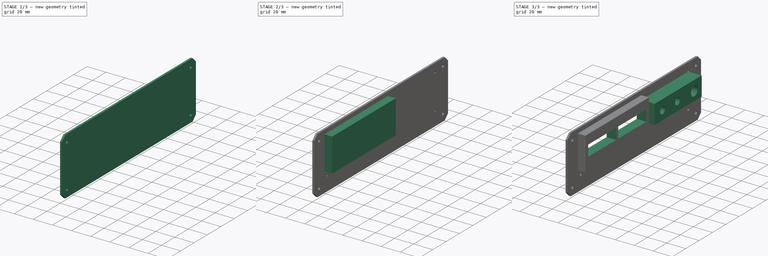
[diagram: build sequence overview — one tinted view per stage of 3, left to right]
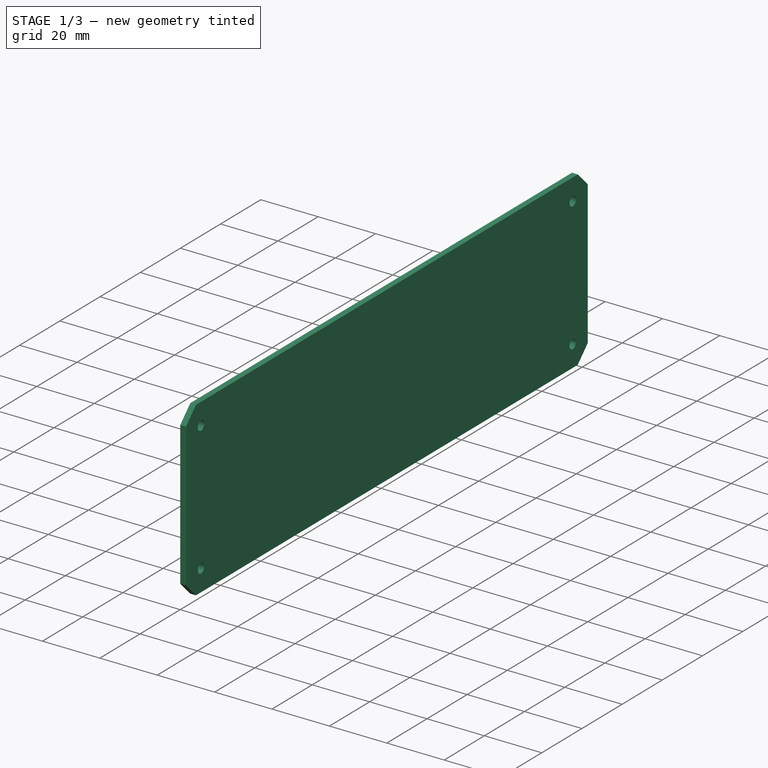
[diagram: stage 1 of 3 — iso view after this stage's code; geometry added in this stage tinted green]
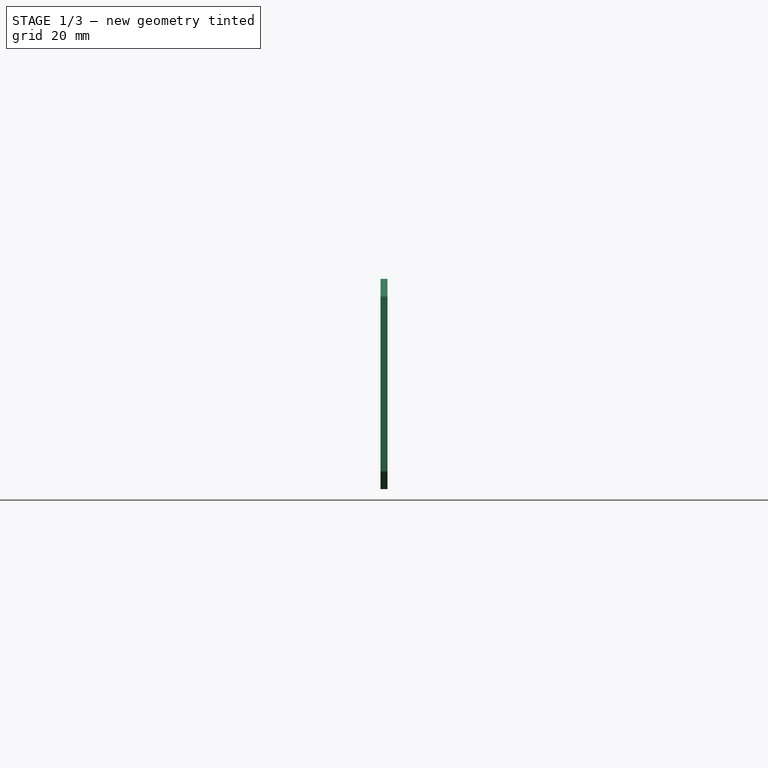
[diagram: stage 1 of 3 — front view after this stage's code; geometry added in this stage tinted green]
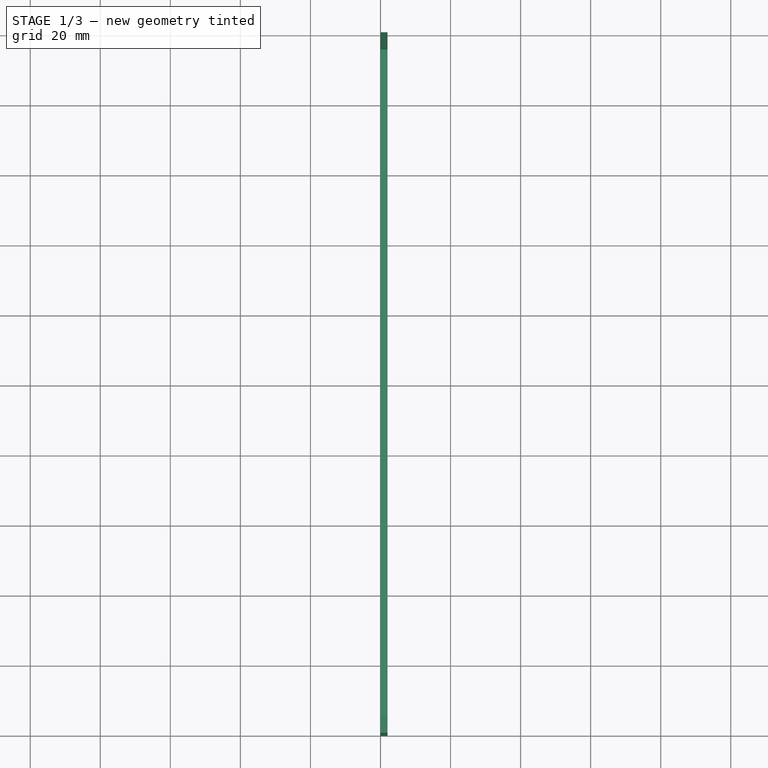
[diagram: stage 1 of 3 — top view after this stage's code; geometry added in this stage tinted green]
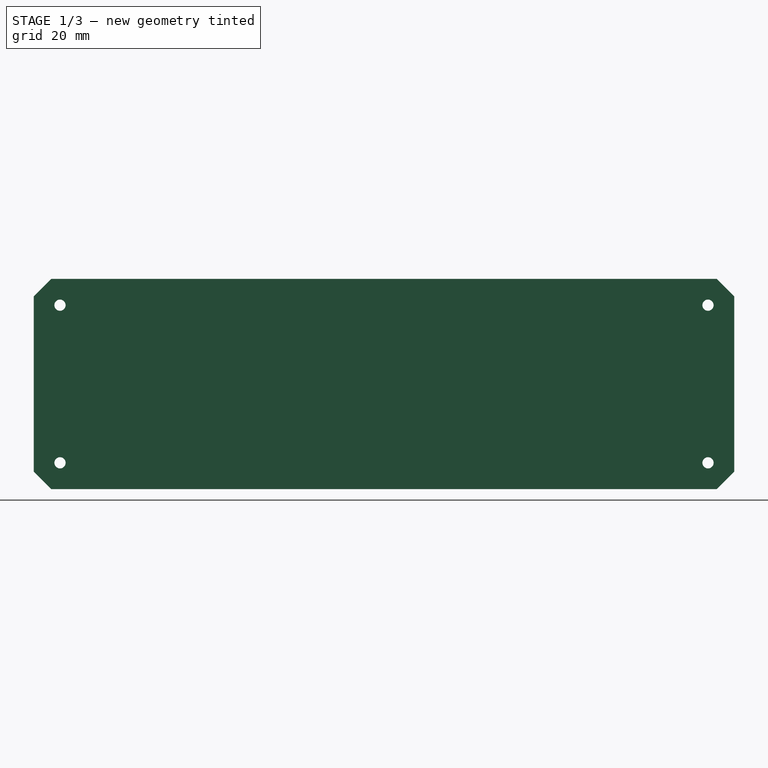
[diagram: stage 1 of 3 — right view after this stage's code; geometry added in this stage tinted green]
FCSTD DOCUMENT  (FreeCAD 1.0R39109 (Git))
Label: case_front_v2
License: All rights reserved
LicenseURL: https://en.wikipedia.org/wiki/All_rights_reserved
objects: Sketcher::SketchObject×8, PartDesign::Pocket×4, PartDesign::Pad×3, PartDesign::Chamfer×1, PartDesign::Body×1
note: 41 computed .brp shape members not serialized (recipe doc carries the construction recipe); baked Part::Feature solids carry a one-line shape summary decoded from their .brp

FEATURE [Sketcher::SketchObject] Sketch
  ArcFitTolerance = 1e-06
  AttachmentSupport = -> [YZ_Plane]
  FullyConstrained = true
  MakeInternals = false
  MapMode = 5
  Placement = pos=(0,0,0) rot=(0.57735,0.57735,0.57735;2.0944rad)
  sketch-geometry (4):
    g0: LineSegment StartX=0 StartY=0 StartZ=0 EndX=200 EndY=0 EndZ=0
    g1: LineSegment StartX=200 StartY=0 StartZ=0 EndX=200 EndY=60 EndZ=0
    g2: LineSegment StartX=200 StartY=60 StartZ=0 EndX=0 EndY=60 EndZ=0
    g3: LineSegment StartX=0 StartY=60 StartZ=0 EndX=0 EndY=0 EndZ=0
  constraints (11):
    c: Coincident(g0,g1)
    c: Coincident(g1,g2)
    c: Coincident(g2,g3)
    c: Coincident(g3,g0)
    c: Horizontal(g0)
    c: Horizontal(g2)
    c: Vertical(g1)
    c: Vertical(g3)
    c: Coincident(g0,g-1)
    c: Distance(g2,g2) = 200
    c: DistanceY(g1,g1) = 60
FEATURE [PartDesign::Pad] Pad
  Direction = (1,0,0)
  Length = 2
  Length2 = 10
  Placement = pos=(0,0,0) rot=(1,1,1;2.0944rad)
  Profile = -> Sketch
  ReferenceAxis = -> Sketch [N_Axis]
  Refine = true
  Suppressed = false
  Type = 0
FEATURE [Sketcher::SketchObject] Sketch002
  ArcFitTolerance = 1e-06
  FullyConstrained = true
  MakeInternals = false
  MapMode = 5
  Placement = pos=(2,0,2e-16) rot=(0.57735,0.57735,0.57735;2.0944rad)
  sketch-geometry (8):
    g0: LineSegment [constr] StartX=7.5 StartY=52.5 StartZ=0 EndX=7.5 EndY=7.5 EndZ=0
    g1: LineSegment [constr] StartX=7.5 StartY=7.5 StartZ=0 EndX=192.5 EndY=7.5 EndZ=0
    g2: LineSegment [constr] StartX=192.5 StartY=7.5 StartZ=0 EndX=192.5 EndY=52.5 EndZ=0
    g3: LineSegment [constr] StartX=192.5 StartY=52.5 StartZ=0 EndX=7.5 EndY=52.5 EndZ=0
    g4: Circle CenterX=7.5 CenterY=52.5 CenterZ=0 NormalX=0 NormalY=0 NormalZ=1 AngleXU=0 Radius=1.6
    g5: Circle CenterX=7.5 CenterY=7.5 CenterZ=0 NormalX=0 NormalY=0 NormalZ=1 AngleXU=0 Radius=1.6
    g6: Circle CenterX=192.5 CenterY=7.5 CenterZ=0 NormalX=0 NormalY=0 NormalZ=1 AngleXU=0 Radius=1.6
    g7: Circle CenterX=192.5 CenterY=52.5 CenterZ=0 NormalX=0 NormalY=0 NormalZ=1 AngleXU=0 Radius=1.6
  constraints (20):
    c: Coincident(g0,g1)
    c: Coincident(g1,g2)
    c: Coincident(g2,g3)
    c: Coincident(g3,g0)
    c: Vertical(g0)
    c: Vertical(g2)
    c: Horizontal(g1)
    c: Horizontal(g3)
    c: Distance(g-2,g0) = 7.5
    c: Distance(g-1,g1) = 7.5
    c: Coincident(g4,g0)
    c: Coincident(g5,g0)
    c: Coincident(g6,g1)
    c: Coincident(g7,g2)
    c: Equal(g7,g4)
    c: Equal(g4,g5)
    c: Equal(g5,g6)
    c: Diameter(g4) = 3.2
    c: DistanceY(g0,g0) = 45
    c: DistanceX(g3,g3) = 185
FEATURE [PartDesign::Pocket] Pocket001
  BaseFeature = -> Pad
  Direction = (-1,-1e-16,1e-16)
  Length = 5
  Length2 = 5
  Placement = pos=(0,0,0) rot=(1,1,1;2.0944rad)
  Profile = -> Sketch002
  ReferenceAxis = -> Sketch002 [N_Axis]
  Refine = true
  Suppressed = false
  Type = 0
FEATURE [Sketcher::SketchObject] Sketch001
  ArcFitTolerance = 1e-06
  AttachmentSupport = -> [Pad]
  ExternalGeometry = -> [Pad,Pocket001]
  FullyConstrained = true
  MakeInternals = false
  MapMode = 5
  Placement = pos=(2,0,0) rot=(0.57735,0.57735,0.57735;2.0944rad)
  sketch-geometry (19):
    g0: Circle CenterX=173.9 CenterY=37.38 CenterZ=0 NormalX=0 NormalY=0 NormalZ=1 AngleXU=0 Radius=3
    g1: Circle CenterX=148.9 CenterY=37.38 CenterZ=0 NormalX=0 NormalY=0 NormalZ=1 AngleXU=0 Radius=5
    g2: Circle CenterX=126.4 CenterY=37.38 CenterZ=0 NormalX=0 NormalY=0 NormalZ=1 AngleXU=0 Radius=5
    g3: LineSegment [constr] StartX=24 StartY=48 StartZ=0 EndX=24 EndY=12 EndZ=0
    g4: LineSegment [constr] StartX=24 StartY=12 StartZ=0 EndX=185 EndY=12 EndZ=0
    g5: LineSegment [constr] StartX=185 StartY=48 StartZ=0 EndX=24 EndY=48 EndZ=0
    g6: LineSegment [constr] StartX=185 StartY=12 StartZ=0 EndX=185 EndY=30 EndZ=0
    g7: LineSegment [constr] StartX=185 StartY=30 StartZ=0 EndX=185 EndY=48 EndZ=0
    g8: LineSegment [constr] StartX=24 StartY=48 StartZ=0 EndX=0 EndY=48 EndZ=0
    g9: LineSegment StartX=22.4 StartY=44.13 StartZ=0 EndX=22.4 EndY=30.63 EndZ=0
    g10: LineSegment StartX=22.4 StartY=30.63 StartZ=0 EndX=112.4 EndY=30.63 EndZ=0
    g11: LineSegment StartX=112.4 StartY=44.13 StartZ=0 EndX=22.4 EndY=44.13 EndZ=0
    g12: LineSegment StartX=112.4 StartY=44.13 StartZ=0 EndX=112.4 EndY=37.38 EndZ=0
    g13: LineSegment StartX=112.4 StartY=37.38 StartZ=0 EndX=112.4 EndY=30.63 EndZ=0
    g14: Circle CenterX=24 CenterY=48 CenterZ=0 NormalX=0 NormalY=0 NormalZ=1 AngleXU=0 Radius=1.5
    g15: Circle CenterX=24 CenterY=12 CenterZ=0 NormalX=0 NormalY=0 NormalZ=1 AngleXU=0 Radius=1.5
    g16: Circle CenterX=185 CenterY=12 CenterZ=0 NormalX=0 NormalY=0 NormalZ=1 AngleXU=0 Radius=1.5
    g17: Circle CenterX=185 CenterY=48 CenterZ=0 NormalX=0 NormalY=0 NormalZ=1 AngleXU=0 Radius=1.5
    g18: LineSegment [constr] StartX=24 StartY=37.38 StartZ=0 EndX=185 EndY=37.38 EndZ=0
  constraints (54):
    c: DistanceX(g1,g0) = 25
    c: DistanceX(g2,g1) = 22.5
    c: Equal(g2,g1)
    c: Diameter(g2) = 10
    c: Diameter(g0) = 6
    c: Coincident(g3,g4)
    c: Coincident(g5,g3)
    c: Vertical(g3)
    c: Horizontal(g4)
    c: Horizontal(g5)
    c: Coincident(g6,g4)
    c: Vertical(g6)
    c: Coincident(g7,g6)
    c: Coincident(g7,g5)
    c: Vertical(g7)
    c: Equal(g7,g6)
    c: DistanceY(g3,g3) = 36
    c: Coincident(g8,g3)
    c: PointOnObject(g8,g-4)
    c: Horizontal(g8)
    c: Distance(g0,g7) = 11.1
    c: Coincident(g9,g10)
    c: Coincident(g11,g9)
    c: Vertical(g9)
    c: Horizontal(g10)
    c: Horizontal(g11)
    c: Coincident(g12,g11)
    c: Vertical(g12)
    c: Coincident(g13,g12)
    c: Coincident(g13,g10)
    c: Vertical(g13)
    c: Equal(g12,g13)
    c: DistanceX(g11,g11) = 90
    c: Distance(g2,g12) = 14
    c: DistanceX(g4,g4) = 161
    c: Distance(g9,g9) = 13.5
    c: Coincident(g14,g3)
    c: Coincident(g15,g3)
    c: Coincident(g16,g4)
    c: Coincident(g17,g5)
    c: Equal(g17,g16)
    c: Equal(g16,g15)
    c: Equal(g15,g14)
    c: Diameter(g14) = 3
    c: PointOnObject(g18,g3)
    c: PointOnObject(g18,g7)
    c: Horizontal(g18)
    c: PointOnObject(g12,g18)
    c: PointOnObject(g2,g18)
    c: PointOnObject(g1,g18)
    c: PointOnObject(g0,g18)
    c: Distance(g18,g5) = 10.62
    c: DistanceX(g5,g-6) = 7.5
    c: Distance(g-6,g5) = 4.5
FEATURE [PartDesign::Chamfer] Chamfer
  Angle = 45
  Base = -> Pocket001 [Edge1,Edge5,Edge8,Edge2]
  BaseFeature = -> Pocket001
  ChamferType = 0
  FlipDirection = false
  Placement = pos=(0,0,0) rot=(1,1,1;2.0944rad)
  Refine = true
  Size = 5
  Size2 = 1
  SupportTransform = false
  Suppressed = false
  UseAllEdges = false
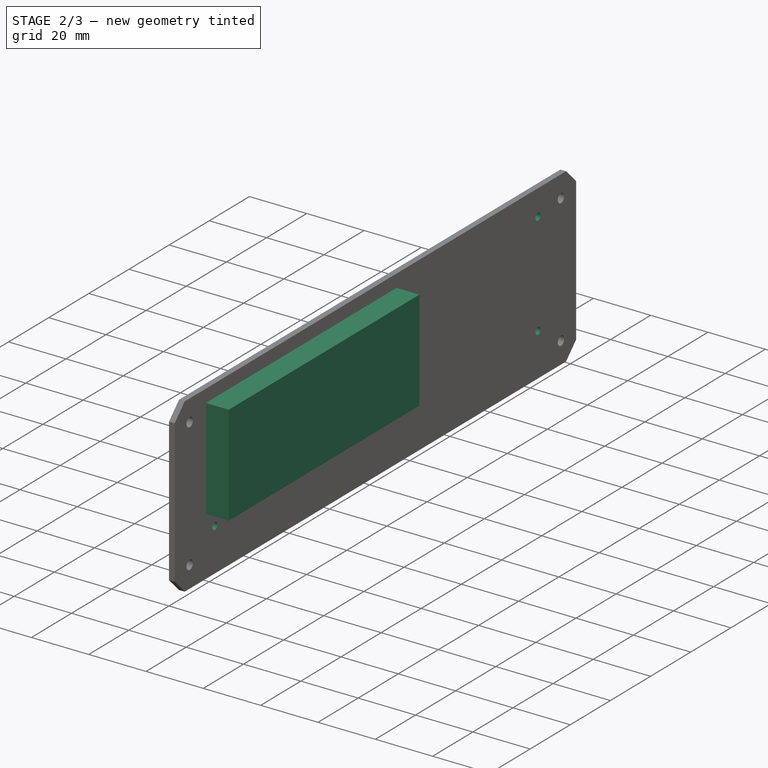
[diagram: stage 2 of 3 — iso view after this stage's code; geometry added in this stage tinted green]
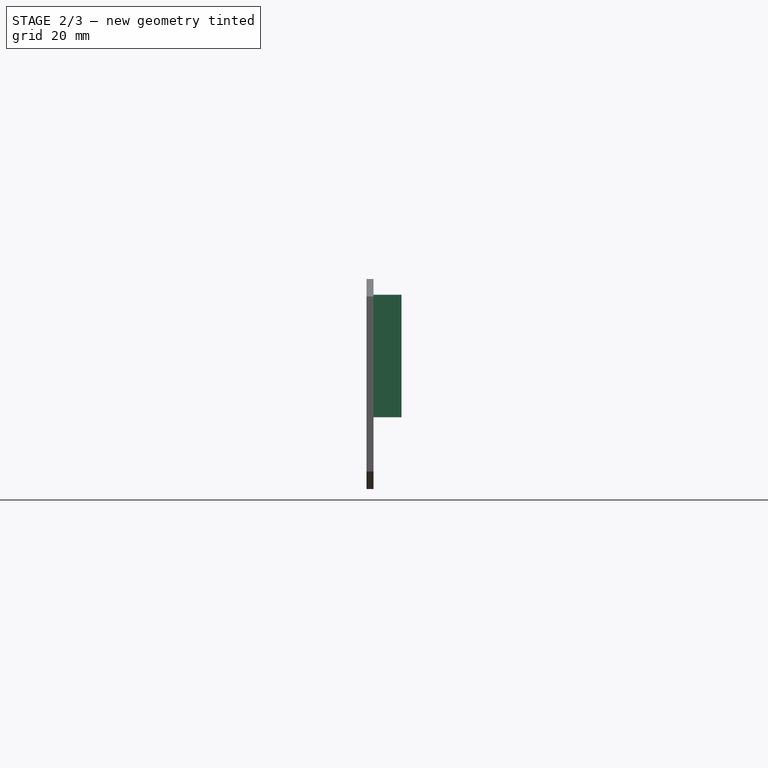
[diagram: stage 2 of 3 — front view after this stage's code; geometry added in this stage tinted green]
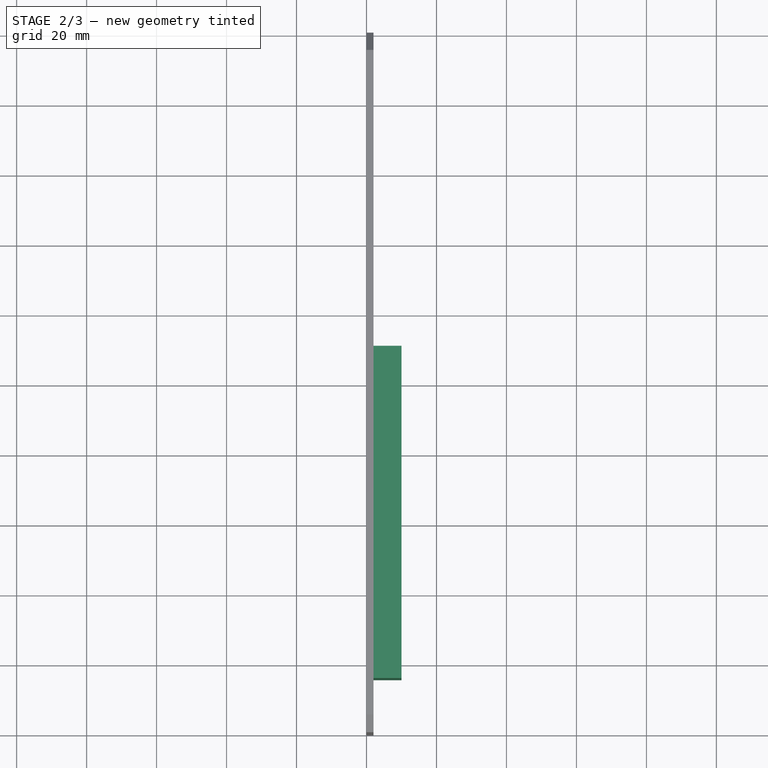
[diagram: stage 2 of 3 — top view after this stage's code; geometry added in this stage tinted green]
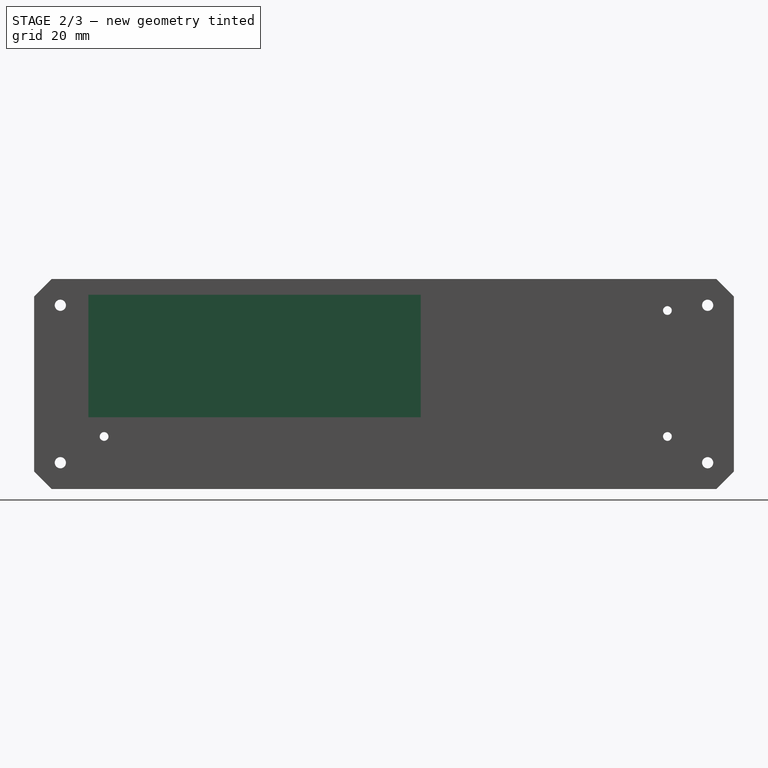
[diagram: stage 2 of 3 — right view after this stage's code; geometry added in this stage tinted green]
FEATURE [Sketcher::SketchObject] Sketch004
  ArcFitTolerance = 1e-06
  AttachmentSupport = -> [Chamfer]
  FullyConstrained = true
  MakeInternals = false
  MapMode = 5
  Placement = pos=(2,0,0) rot=(0.57735,0.57735,0.57735;2.0944rad)
  sketch-geometry (8):
    g0: LineSegment [constr] StartX=20 StartY=51 StartZ=0 EndX=20 EndY=15 EndZ=0
    g1: LineSegment [constr] StartX=20 StartY=15 StartZ=0 EndX=181 EndY=15 EndZ=0
    g2: LineSegment [constr] StartX=181 StartY=15 StartZ=0 EndX=181 EndY=51 EndZ=0
    g3: LineSegment [constr] StartX=181 StartY=51 StartZ=0 EndX=20 EndY=51 EndZ=0
    g4: Circle CenterX=20 CenterY=51 CenterZ=0 NormalX=0 NormalY=0 NormalZ=1 AngleXU=0 Radius=1.25
    g5: Circle CenterX=20 CenterY=15 CenterZ=0 NormalX=0 NormalY=0 NormalZ=1 AngleXU=0 Radius=1.25
    g6: Circle CenterX=181 CenterY=15 CenterZ=0 NormalX=0 NormalY=0 NormalZ=1 AngleXU=0 Radius=1.25
    g7: Circle CenterX=181 CenterY=51 CenterZ=0 NormalX=0 NormalY=0 NormalZ=1 AngleXU=0 Radius=1.25
  constraints (20):
    c: Coincident(g0,g1)
    c: Coincident(g1,g2)
    c: Coincident(g2,g3)
    c: Coincident(g3,g0)
    c: Vertical(g0)
    c: Vertical(g2)
    c: Horizontal(g1)
    c: Horizontal(g3)
    c: Coincident(g4,g0)
    c: Coincident(g5,g0)
    c: Coincident(g6,g1)
    c: Coincident(g7,g2)
    c: Equal(g4,g7)
    c: Equal(g7,g6)
    c: Equal(g6,g5)
    c: Diameter(g4) = 2.5
    c: DistanceY(g0,g0) = 36
    c: DistanceX(g3,g3) = 161
    c: Distance(g-2,g0) = 20
    c: Distance(g-1,g1) = 15
FEATURE [PartDesign::Pocket] Pocket
  BaseFeature = -> Chamfer
  Direction = (-1,0,0)
  Length = 5
  Length2 = 5
  Placement = pos=(0,0,0) rot=(1,1,1;2.0944rad)
  Profile = -> Sketch004
  ReferenceAxis = -> Sketch004 [N_Axis]
  Refine = true
  Suppressed = false
  Type = 1
FEATURE [Sketcher::SketchObject] Sketch003
  ArcFitTolerance = 1e-06
  ExternalGeometry = -> [Pocket]
  FullyConstrained = true
  MakeInternals = false
  MapMode = 5
  Placement = pos=(2,-4e-16,4e-16) rot=(0.57735,0.57735,0.57735;2.0944rad)
  sketch-geometry (4):
    g0: LineSegment StartX=15.5 StartY=55.5 StartZ=0 EndX=15.5 EndY=20.5 EndZ=0
    g1: LineSegment StartX=15.5 StartY=20.5 StartZ=0 EndX=110.5 EndY=20.5 EndZ=0
    g2: LineSegment StartX=110.5 StartY=55.5 StartZ=0 EndX=15.5 EndY=55.5 EndZ=0
    g3: LineSegment StartX=110.5 StartY=55.5 StartZ=0 EndX=110.5 EndY=20.5 EndZ=0
  constraints (12):
    c: Coincident(g0,g1)
    c: Coincident(g2,g0)
    c: Vertical(g0)
    c: Horizontal(g1)
    c: Horizontal(g2)
    c: DistanceX(g1,g1) = 95
    c: Coincident(g3,g2)
    c: Coincident(g3,g1)
    c: Vertical(g3)
    c: DistanceY(g0,g0) = 35
    c: Distance(g-4,g0) = 4.5
    c: Distance(g-4,g1) = 5.5
FEATURE [PartDesign::Pad] Pad001
  BaseFeature = -> Pocket
  Direction = (1,1e-16,-1e-16)
  Length = 8
  Length2 = 10
  Placement = pos=(0,0,0) rot=(1,1,1;2.0944rad)
  Profile = -> Sketch003
  ReferenceAxis = -> Sketch003 [N_Axis]
  Refine = true
  Suppressed = false
  Type = 0
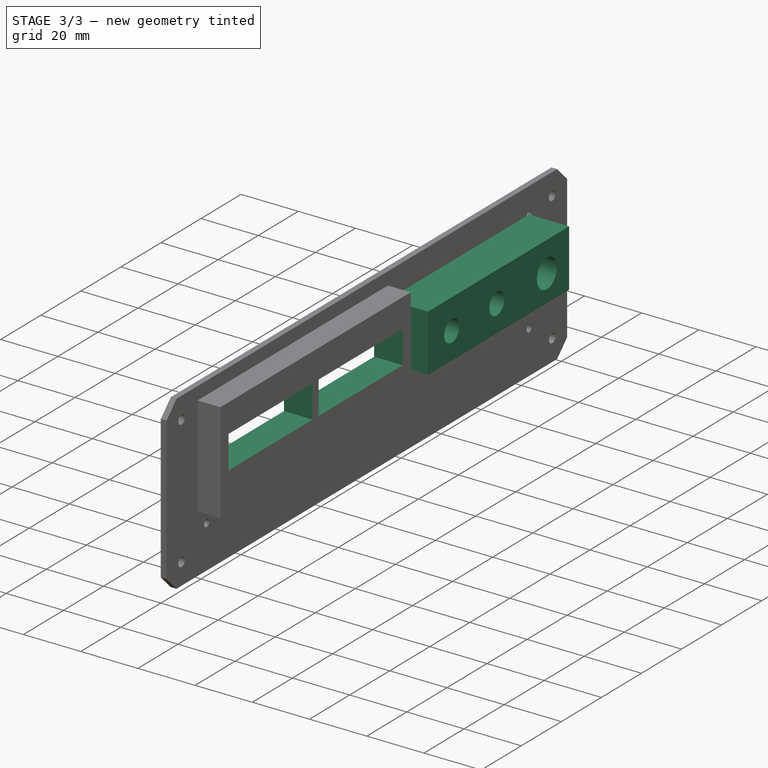
[diagram: stage 3 of 3 — iso view after this stage's code; geometry added in this stage tinted green]
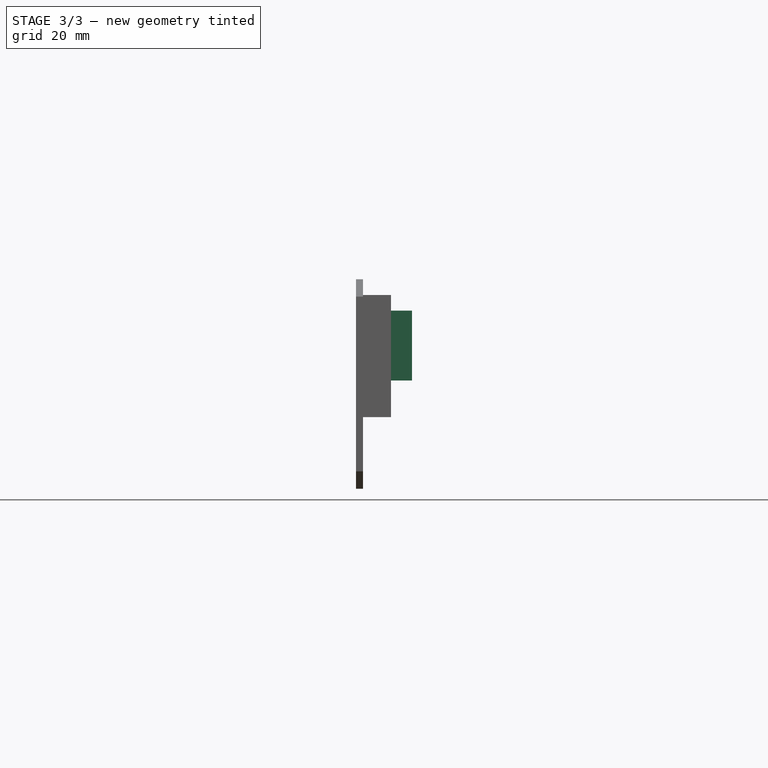
[diagram: stage 3 of 3 — front view after this stage's code; geometry added in this stage tinted green]
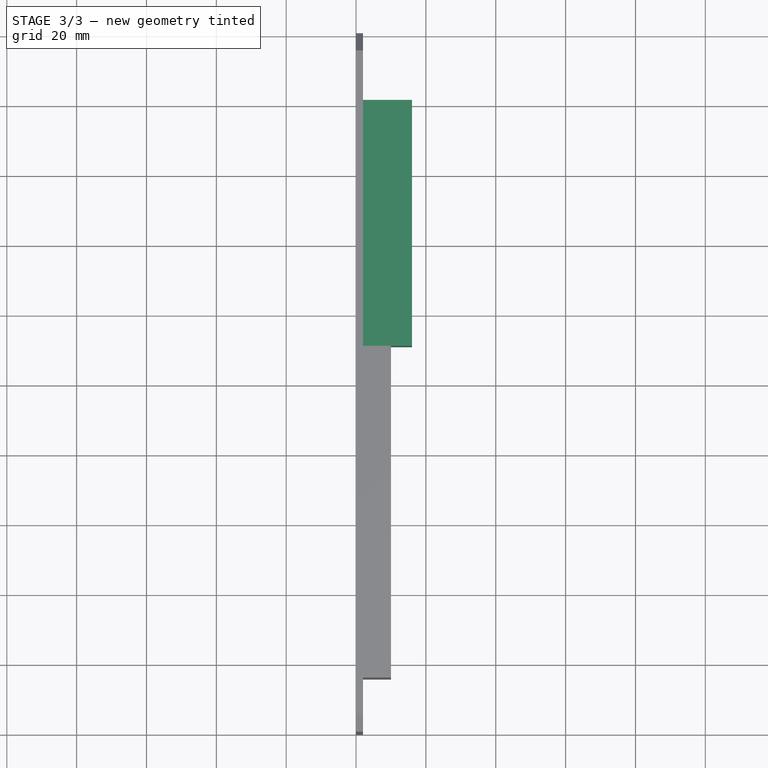
[diagram: stage 3 of 3 — top view after this stage's code; geometry added in this stage tinted green]
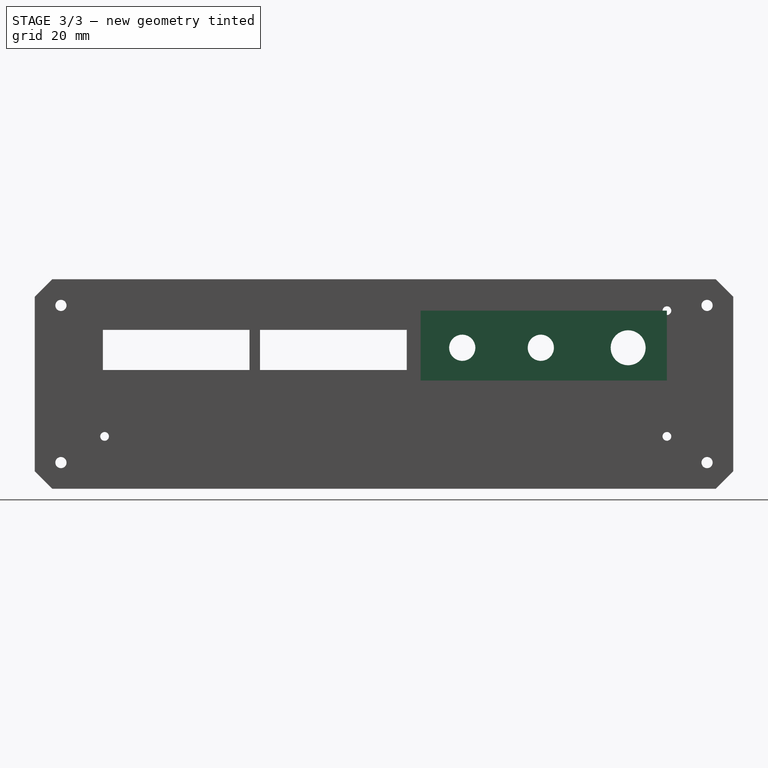
[diagram: stage 3 of 3 — right view after this stage's code; geometry added in this stage tinted green]
FEATURE [Sketcher::SketchObject] Sketch005
  ArcFitTolerance = 1e-06
  AttachmentSupport = -> [Pad001]
  ExternalGeometry = -> [Pad001]
  FullyConstrained = true
  MakeInternals = false
  MapMode = 5
  Placement = pos=(10,4.4e-15,0) rot=(0.57735,0.57735,0.57735;2.0944rad)
  sketch-geometry (8):
    g0: LineSegment StartX=19.5 StartY=45.5 StartZ=0 EndX=19.5 EndY=34 EndZ=0
    g1: LineSegment StartX=19.5 StartY=34 StartZ=0 EndX=61.5 EndY=34 EndZ=0
    g2: LineSegment StartX=61.5 StartY=34 StartZ=0 EndX=61.5 EndY=45.5 EndZ=0
    g3: LineSegment StartX=61.5 StartY=45.5 StartZ=0 EndX=19.5 EndY=45.5 EndZ=0
    g4: LineSegment StartX=64.5 StartY=45.5 StartZ=0 EndX=64.5 EndY=34 EndZ=0
    g5: LineSegment StartX=64.5 StartY=34 StartZ=0 EndX=106.5 EndY=34 EndZ=0
    g6: LineSegment StartX=106.5 StartY=34 StartZ=0 EndX=106.5 EndY=45.5 EndZ=0
    g7: LineSegment StartX=106.5 StartY=45.5 StartZ=0 EndX=64.5 EndY=45.5 EndZ=0
  constraints (23):
    c: Coincident(g0,g1)
    c: Coincident(g1,g2)
    c: Coincident(g2,g3)
    c: Coincident(g3,g0)
    c: Vertical(g0)
    c: Vertical(g2)
    c: Horizontal(g1)
    c: Horizontal(g3)
    c: Coincident(g4,g5)
    c: Coincident(g5,g6)
    c: Coincident(g6,g7)
    c: Coincident(g7,g4)
    c: Vertical(g4)
    c: Vertical(g6)
    c: Horizontal(g5)
    c: Tangent(g7,g3)
    c: Equal(g0,g4)
    c: DistanceY(g6,g6) = 11.5
    c: Distance(g2,g4) = 3
    c: Distance(g-3,g0) = 4
    c: Distance(g-4,g3) = 10
    c: Equal(g3,g7)
    c: DistanceX(g3,g3) = 42
FEATURE [PartDesign::Pocket] Pocket002
  BaseFeature = -> Pad001
  Direction = (-1,0,0)
  Length = 5
  Length2 = 5
  Placement = pos=(0,0,0) rot=(1,1,1;2.0944rad)
  Profile = -> Sketch005
  ReferenceAxis = -> Sketch005 [N_Axis]
  Refine = true
  Suppressed = false
  Type = 1
FEATURE [Sketcher::SketchObject] Sketch006
  ArcFitTolerance = 1e-06
  AttachmentSupport = -> [Pocket002]
  ExternalGeometry = -> [Pocket002]
  FullyConstrained = true
  MakeInternals = false
  MapMode = 5
  Placement = pos=(2,0,0) rot=(0.57735,0.57735,0.57735;2.0944rad)
  sketch-geometry (4):
    g0: LineSegment StartX=110.5 StartY=51 StartZ=0 EndX=110.5 EndY=31 EndZ=0
    g1: LineSegment StartX=110.5 StartY=31 StartZ=0 EndX=181 EndY=31 EndZ=0
    g2: LineSegment StartX=181 StartY=31 StartZ=0 EndX=181 EndY=51 EndZ=0
    g3: LineSegment StartX=181 StartY=51 StartZ=0 EndX=110.5 EndY=51 EndZ=0
  constraints (11):
    c: Coincident(g0,g1)
    c: Coincident(g1,g2)
    c: Coincident(g2,g3)
    c: Coincident(g3,g0)
    c: Vertical(g0)
    c: Vertical(g2)
    c: Horizontal(g1)
    c: Horizontal(g3)
    c: PointOnObject(g0,g-4)
    c: DistanceY(g2,g2) = 20
    c: Coincident(g2,g-3)
FEATURE [PartDesign::Pad] Pad002
  BaseFeature = -> Pocket002
  Direction = (1,0,0)
  Length = 14
  Length2 = 10
  Placement = pos=(0,0,0) rot=(1,1,1;2.0944rad)
  Profile = -> Sketch006
  ReferenceAxis = -> Sketch006 [N_Axis]
  Refine = true
  Suppressed = false
  Type = 0
FEATURE [Sketcher::SketchObject] Sketch007
  ArcFitTolerance = 1e-06
  AttachmentSupport = -> [Pad002]
  ExternalGeometry = -> [Pad002]
  FullyConstrained = true
  MakeInternals = false
  MapMode = 5
  Placement = pos=(-2.89e-14,0,0) rot=(0.57735,0.57735,-0.57735;4.18879rad)
  sketch-geometry (3):
    g0: Circle CenterX=169.9 CenterY=-40.375 CenterZ=0 NormalX=0 NormalY=0 NormalZ=1 AngleXU=0 Radius=5
    g1: Circle CenterX=144.9 CenterY=-40.375 CenterZ=0 NormalX=0 NormalY=0 NormalZ=1 AngleXU=0 Radius=3.75
    g2: Circle CenterX=122.4 CenterY=-40.375 CenterZ=0 NormalX=0 NormalY=0 NormalZ=1 AngleXU=0 Radius=3.75
  constraints (9):
    c: Horizontal(g2,g1)
    c: Horizontal(g1,g0)
    c: DistanceX(g0,g-3) = 11.1
    c: DistanceX(g1,g0) = 25
    c: DistanceX(g2,g1) = 22.5
    c: DistanceY(g-3,g0) = 10.625
    c: Diameter(g0) = 10
    c: Equal(g1,g2)
    c: Diameter(g2) = 7.5
FEATURE [PartDesign::Pocket] Pocket003
  BaseFeature = -> Pad002
  Direction = (1,0,0)
  Length = 5
  Length2 = 5
  Placement = pos=(0,0,0) rot=(1,1,1;2.0944rad)
  Profile = -> Sketch007
  ReferenceAxis = -> Sketch007 [N_Axis]
  Refine = true
  Suppressed = false
  Type = 1
FEATURE [PartDesign::Body] Body
  AllowCompound = false
  Group = -> [Sketch,Pad,Sketch001,Sketch002,Pocket001,Chamfer,Sketch004,Pocket,Sketch003,Pad001,Sketch005,Pocket002,Sketch006,Pad002,Sketch007,Pocket003]
  Origin = -> Origin
  Placement = pos=(0,1.06722,0) rot=(0,0,1;0rad)
  Tip = -> Pocket003
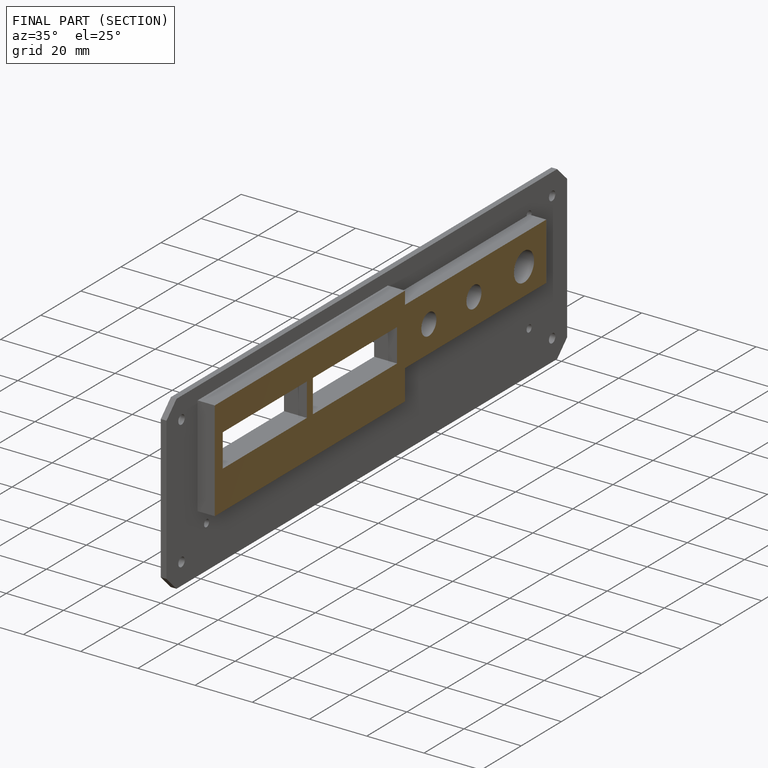
[diagram: finished part — half-section view (interior)]
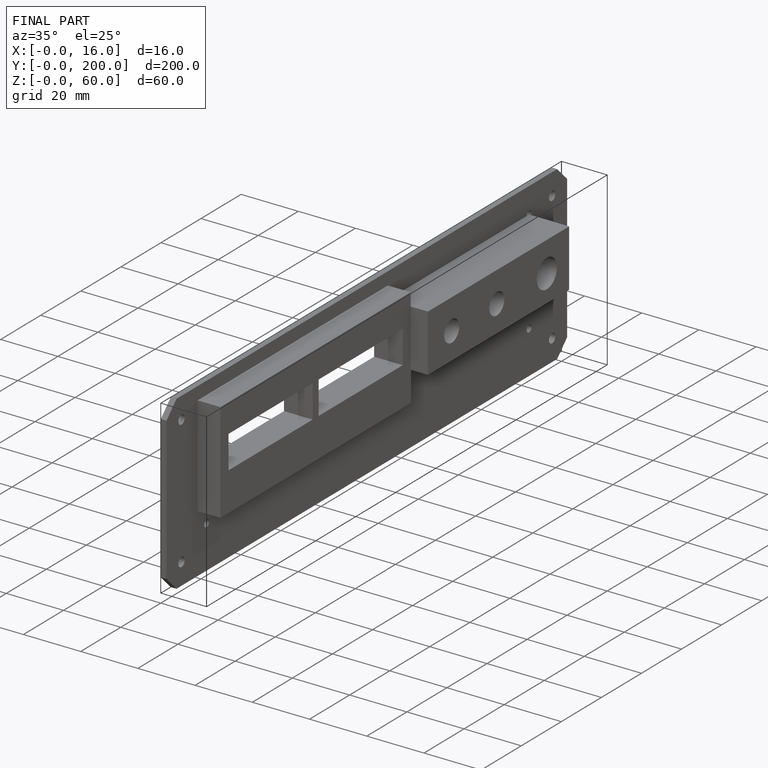
[diagram: finished part — iso view with bounding-box wireframe]
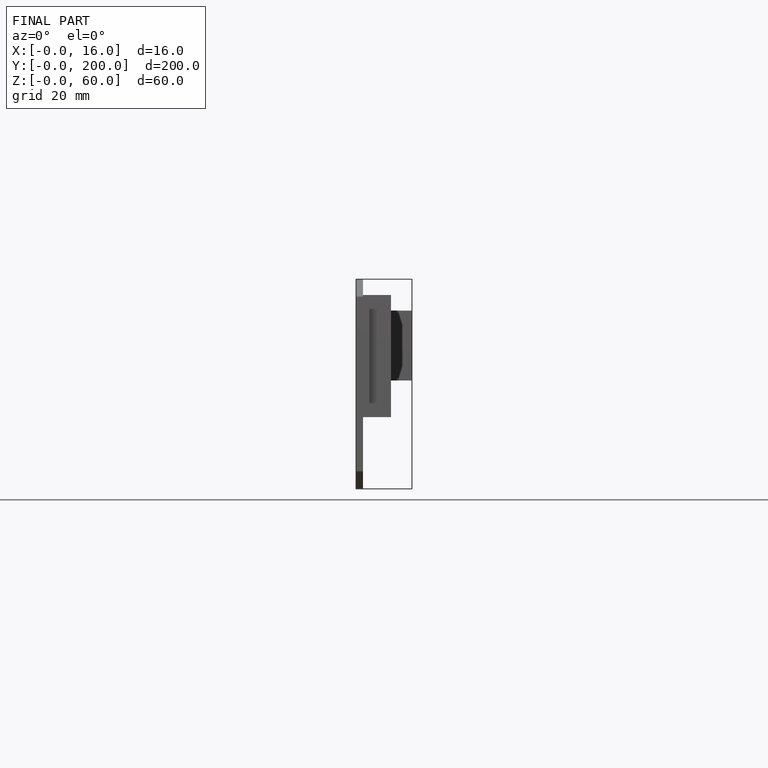
[diagram: finished part — front view with bounding-box wireframe]
